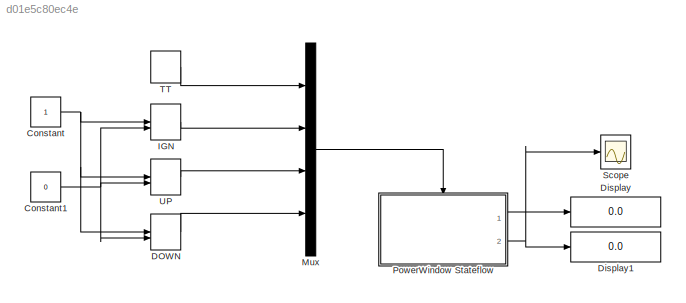
MODEL slx_d01e5c80ec4e
KIND model
CONFIG AbsTol = auto
CONFIG EnableMultiTasking = on
CONFIG FixedStep = auto
CONFIG MaxStep = auto
CONFIG MinStep = auto
CONFIG RelTol = 1e-3
CONFIG SampleTimeConstraint = Unconstrained
CONFIG Solver = ode45
CONFIG SolverName = ode45
CONFIG StartTime = 0.0
CONFIG StopTime = inf
BLOCK [Constant] Constant
BLOCK [Constant] Constant1
  Value = 0
BLOCK [ManualSwitch] DOWN
  CurrentSetting = 0
BLOCK [Display] Display
  Decimation = 1
  Ports = [1]
BLOCK [Display] Display1
  Decimation = 1
  Ports = [1]
BLOCK [ManualSwitch] IGN
BLOCK [Mux] Mux
  DisplayOption = bar
  Ports = [4, 1]
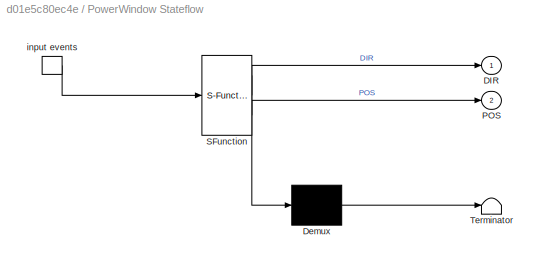
BLOCK [SubSystem] PowerWindow Stateflow
  ErrorFcn = Stateflow.Translate.translate
  PermitHierarchicalResolution = ExplicitOnly
  Ports = [0, 2, 0, 1]
  RequestExecContextInheritance = off
  SFBlockType = Chart
  TreatAsAtomicUnit = on
  Variant = off
BLOCK [Demux] PowerWindow Stateflow/ Demux 
  Outputs = 1
  Ports = [1, 1]
BLOCK [S-Function] PowerWindow Stateflow/ SFunction 
  EnableBusSupport = on
  FunctionName = sf_sfun
  PortCounts = [1 3]
  Ports = [1, 3]
  SFcnIsStateOwnerBlock = off
  SFunctionDeploymentMode = off
  Tag = Stateflow S-Function powerwindow 1
BLOCK [Terminator] PowerWindow Stateflow/ Terminator 
BLOCK [TriggerPort] PowerWindow Stateflow/ input events 
  Ports = [0, 1]
  ShowOutputPort = on
  StatesWhenEnabling = held
  TriggerType = either
  VariantControl = (inherit)
BLOCK [Outport] PowerWindow Stateflow/DIR
  IconDisplay = Port number
BLOCK [Outport] PowerWindow Stateflow/POS
  IconDisplay = Port number
  Port = 2
BLOCK [Scope] Scope
  NumInputPorts = 1
  Ports = [1]
  ScopeSpecificationString = C++SS(StrPVP('Location','[1, 48, 1601, 1159]'),StrPVP('Open','off'),StrPVP('ZoomMode','xonly'),MxPVP('AxesTitles',53,'struct(''axes1'',''%<SignalLabel>'')'),MxPVP('ScopeGraphics',56,'struct(''FigureColor'',''[0.5 0.5 0.5]'',''AxesColor'',''[0 0 0]'',''AxesTickColor'',''[1 1 1]'',''LineColors'',''[1 1 0;1 0 1;0 1 1;1 0 0;0 1 0;0 0 1]'',''LineStyles'',''-|-|-|-|-|-'',''LineWidths'',''[0.5 0.5 0.5 0....<+266ch>
BLOCK [DiscretePulseGenerator] TT
  Period = 1
  Ports = [0, 1]
  PulseType = Time based
  PulseWidth = 50
BLOCK [ManualSwitch] UP
NET Constant1:1 -> DOWN:2, IGN:2, UP:2
NET Constant:1 -> DOWN:1, IGN:1, UP:1
LINE DOWN:1 -> Mux:4
LINE IGN:1 -> Mux:2
LINE Mux:1 -> PowerWindow Stateflow:trigger
LINE PowerWindow Stateflow:1 -> Display:1
NET PowerWindow Stateflow:2 -> Display1:1, Scope:1
LINE TT:1 -> Mux:1
LINE UP:1 -> Mux:3
note: NET lines group one-source signal fan-out (src -> all destinations, sorted); 1:1 wires keep LINE
CHART PowerWindow Stateflow states=6 transitions=14
  STATE_LABEL 'ON'
  STATE_LABEL 'STANDSTILL\nentry:\nDIR=0;'
  STATE_LABEL 'UP\nentry:\nDIR=2;'
  STATE_LABEL 'DOWN\nentry:\nDIR=1;'
  STATE_LABEL '[POS==0]'
  STATE_LABEL '[POS==20]'
  STATE_LABEL 'DOWN[POS>0]'
  STATE_LABEL 'UP[POS<20]'
  STATE_LABEL 'UP'
  STATE_LABEL 'DOWN'
  STATE_LABEL 'DOWN'
  STATE_LABEL 'UP'
  STATE_LABEL 'TT[POS<20]/POS++;'
  STATE_LABEL 'TT[POS>0]/POS--;'
  STATE_LABEL 'STANDSTILL\nentry:\nDIR=0;'
  STATE_LABEL 'UP\nentry:\nDIR=2;'
  STATE_LABEL 'DOWN\nentry:\nDIR=1;'
  STATE_LABEL 'OFF'
  STATE_LABEL 'cyc = 23\nobj = 19\nlines = 16'
